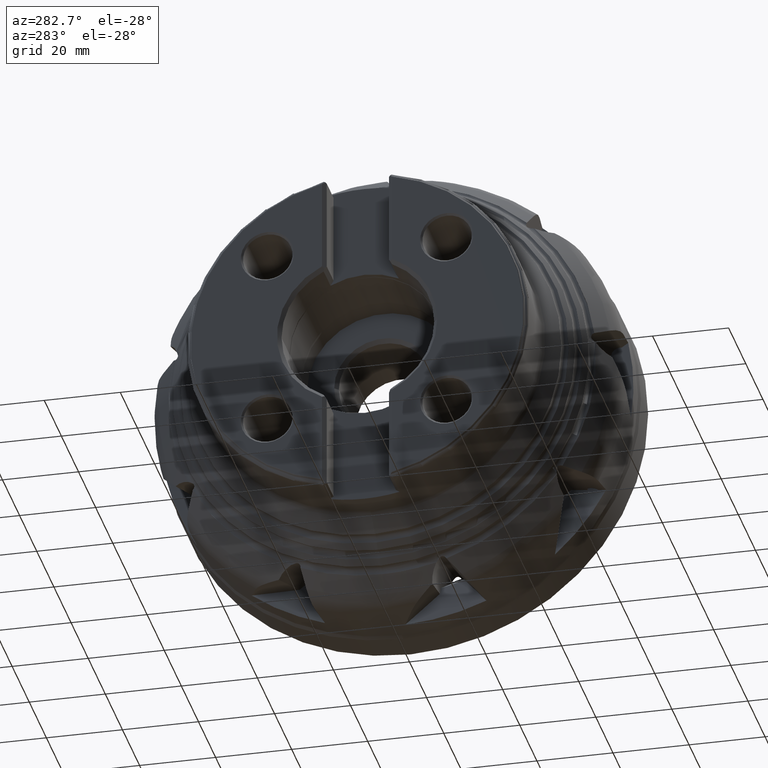
[diagram: clean part render]
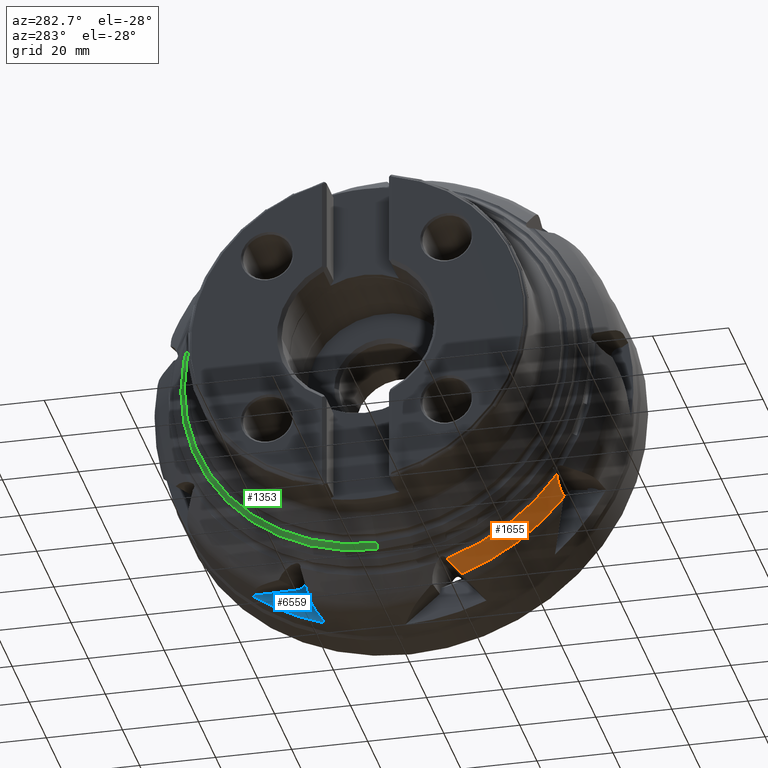
[diagram: same view with three faces highlighted in distinct colors, each labeled with its STEP entity id]
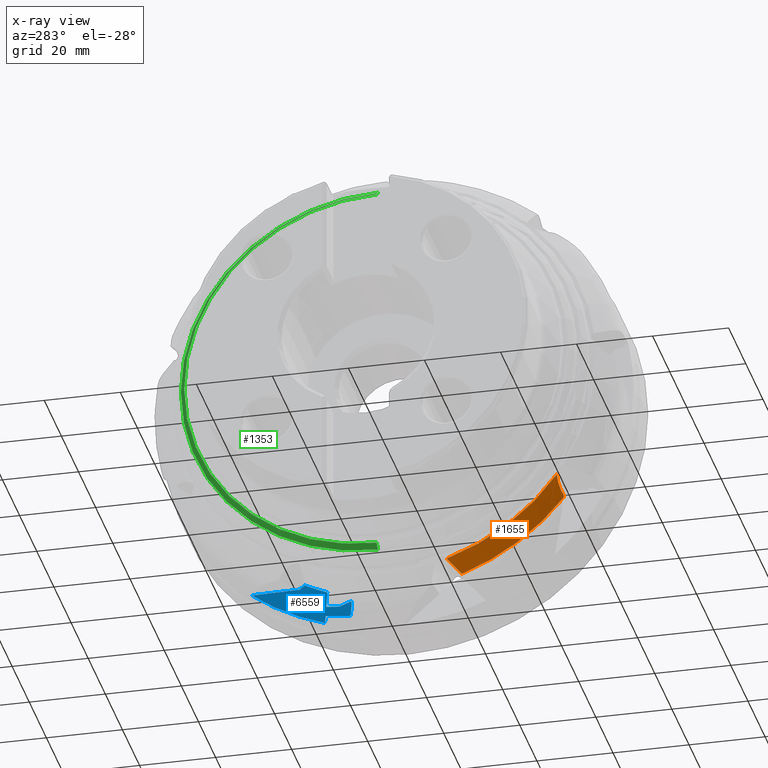
[diagram: x-ray of the same camera — body ghosted, the three highlighted faces saturated]
A machine part, auxiliary view with three faces highlighted in distinct colors.
The next image is the same camera in x-ray (body ghosted, the three faces saturated) — at least one of them is partly hidden behind the body in this view.
Their STEP definitions:

[orange] entity #1655 — the highlighted conical surface has half-angle 39.826 deg.
#1655 = ADVANCED_FACE ( 'NONE', ( #10095 ), #10097, .T. ) ;
#2130 = AXIS2_PLACEMENT_3D ( 'NONE', #15467, #15469, #15470 ) ;
#2137 = AXIS2_PLACEMENT_3D ( 'NONE', #15444, #15451, #15452 ) ;
#2582 = CIRCLE ( 'NONE', #2137, 59.75487436399001200 ) ;
#2586 = CIRCLE ( 'NONE', #2130, 56.25866457677549400 ) ;
#4457 = EDGE_CURVE ( 'NONE', #16005, #16023, #12687, .T. ) ;
#4475 = EDGE_CURVE ( 'NONE', #16012, #16013, #12697, .T. ) ;
#4482 = EDGE_CURVE ( 'NONE', #16013, #16002, #12702, .T. ) ;
#5420 = ORIENTED_EDGE ( 'NONE', *, *, #9175, .F. ) ;
#5421 = ORIENTED_EDGE ( 'NONE', *, *, #4475, .T. ) ;
#5422 = ORIENTED_EDGE ( 'NONE', *, *, #4482, .T. ) ;
#5423 = ORIENTED_EDGE ( 'NONE', *, *, #9180, .T. ) ;
#5424 = ORIENTED_EDGE ( 'NONE', *, *, #4457, .F. ) ;
#6952 = CARTESIAN_POINT ( 'NONE',  ( -31.59698679686136200, -45.86407484354990800, -32.58103710300501600 ) ) ;
#6955 = CARTESIAN_POINT ( 'NONE',  ( -27.40464907339420000, -19.93403308180935700, -56.33186784893219100 ) ) ;
#6962 = CARTESIAN_POINT ( 'NONE',  ( -27.40464907339420400, -46.70956325468263500, -37.26743499106200400 ) ) ;
#6963 = CARTESIAN_POINT ( 'NONE',  ( -27.62109095255488000, -46.83545344958759700, -36.81774189079518300 ) ) ;
#6973 = CARTESIAN_POINT ( 'NONE',  ( -31.59698679686139000, -16.91833157186468400, -53.65451888505366900 ) ) ;
#8283 = EDGE_LOOP ( 'NONE', ( #5420, #5421, #5422, #5423, #5424 ) ) ;
#9175 = EDGE_CURVE ( 'NONE', #16012, #16005, #2582, .T. ) ;
#9180 = EDGE_CURVE ( 'NONE', #16002, #16023, #2586, .T. ) ;
#9993 = AXIS2_PLACEMENT_3D ( 'NONE', #10768, #10736, #10941 ) ;
#10095 = FACE_OUTER_BOUND ( 'NONE', #8283, .T. ) ;
#10097 = CONICAL_SURFACE ( 'NONE', #9993, 59.75487436399001200, 0.6951034709373684600 ) ;
#10736 = DIRECTION ( 'NONE',  ( 1.000000000000000000, -0.0000000000000000000, -0.0000000000000000000 ) ) ;
#10768 = CARTESIAN_POINT ( 'NONE',  ( -27.40464907339420400, 0.0000000000000000000, 0.0000000000000000000 ) ) ;
#10941 = DIRECTION ( 'NONE',  ( 0.0000000000000000000, 0.0000000000000000000, -1.000000000000000000 ) ) ;
#12152 = CARTESIAN_POINT ( 'NONE',  ( -27.40464907339420000, -19.93403308180935700, -56.33186784893219100 ) ) ;
#12170 = CARTESIAN_POINT ( 'NONE',  ( -28.80806567821823100, -18.93226919372529300, -55.44485896743721300 ) ) ;
#12171 = CARTESIAN_POINT ( 'NONE',  ( -30.20591331876110500, -17.92726882929584100, -54.55277539010333500 ) ) ;
#12172 = CARTESIAN_POINT ( 'NONE',  ( -31.59698679686139000, -16.91833157186468400, -53.65451888505366900 ) ) ;
#12228 = CARTESIAN_POINT ( 'NONE',  ( -27.40464907339420400, -46.70956325468263500, -37.26743499106200400 ) ) ;
#12246 = CARTESIAN_POINT ( 'NONE',  ( -27.47718289146705200, -46.75161877367065000, -37.11773453255248300 ) ) ;
#12247 = CARTESIAN_POINT ( 'NONE',  ( -27.54933188338693700, -46.79358257686389800, -36.96783769938562600 ) ) ;
#12248 = CARTESIAN_POINT ( 'NONE',  ( -27.62109095255488000, -46.83545344958759700, -36.81774189079518300 ) ) ;
#12268 = CARTESIAN_POINT ( 'NONE',  ( -27.62109095255488000, -46.83545344958759700, -36.81774189079518300 ) ) ;
#12278 = CARTESIAN_POINT ( 'NONE',  ( -28.36215382730558700, -46.49925108574811400, -36.24542451290658100 ) ) ;
#12279 = CARTESIAN_POINT ( 'NONE',  ( -29.07099293930447500, -46.24610626590014600, -35.60914976426852300 ) ) ;
#12280 = CARTESIAN_POINT ( 'NONE',  ( -30.07781328662911900, -45.99637159372961300, -34.54822920776219800 ) ) ;
#12281 = CARTESIAN_POINT ( 'NONE',  ( -30.40559345123259000, -45.93493545995045900, -34.17431617934636300 ) ) ;
#12282 = CARTESIAN_POINT ( 'NONE',  ( -31.02718021484939100, -45.86184401837088100, -33.39919240328060100 ) ) ;
#12283 = CARTESIAN_POINT ( 'NONE',  ( -31.32147736149261500, -45.84978008720741400, -32.99789627330869000 ) ) ;
#12284 = CARTESIAN_POINT ( 'NONE',  ( -31.59698679686136200, -45.86407484354990800, -32.58103710300501600 ) ) ;
#12687 = B_SPLINE_CURVE_WITH_KNOTS ( 'NONE', 3,
 ( #12152, #12170, #12171, #12172 ),
 .UNSPECIFIED., .F., .F.,
 ( 4, 4 ),
 ( 2.763291038025456800E-007, 0.005817350220595130500 ),
 .UNSPECIFIED. ) ;
#12697 = B_SPLINE_CURVE_WITH_KNOTS ( 'NONE', 3,
 ( #12228, #12246, #12247, #12248 ),
 .UNSPECIFIED., .F., .F.,
 ( 4, 4 ),
 ( 4.728720295787074400E-007, 0.0005149635873332307800 ),
 .UNSPECIFIED. ) ;
#12702 = B_SPLINE_CURVE_WITH_KNOTS ( 'NONE', 3,
 ( #12268, #12278, #12279, #12280, #12281, #12282, #12283, #12284 ),
 .UNSPECIFIED., .F., .F.,
 ( 4, 2, 2, 4 ),
 ( 0.0002867613175306255100, 0.003242237368667228500, 0.004719975394235523100, 0.006197713419803817200 ),
 .UNSPECIFIED. ) ;
#15444 = CARTESIAN_POINT ( 'NONE',  ( -27.40464907339420400, 0.0000000000000000000, 0.0000000000000000000 ) ) ;
#15451 = DIRECTION ( 'NONE',  ( 1.000000000000000000, -0.0000000000000000000, -0.0000000000000000000 ) ) ;
#15452 = DIRECTION ( 'NONE',  ( 0.0000000000000000000, 0.0000000000000000000, -1.000000000000000000 ) ) ;
#15467 = CARTESIAN_POINT ( 'NONE',  ( -31.59698679686139000, 0.0000000000000000000, 0.0000000000000000000 ) ) ;
#15469 = DIRECTION ( 'NONE',  ( 1.000000000000000000, -0.0000000000000000000, -0.0000000000000000000 ) ) ;
#15470 = DIRECTION ( 'NONE',  ( 0.0000000000000000000, 0.0000000000000000000, -1.000000000000000000 ) ) ;
#16002 = VERTEX_POINT ( 'NONE', #6952 ) ;
#16005 = VERTEX_POINT ( 'NONE', #6955 ) ;
#16012 = VERTEX_POINT ( 'NONE', #6962 ) ;
#16013 = VERTEX_POINT ( 'NONE', #6963 ) ;
#16023 = VERTEX_POINT ( 'NONE', #6973 ) ;

[blue] entity #6559 — the highlighted conical surface has half-angle 80.208 deg.
#2072 = AXIS2_PLACEMENT_3D ( 'NONE', #15157, #15156, #15155 ) ;
#2280 = B_SPLINE_CURVE_WITH_KNOTS ( 'NONE', 3,
 ( #3757, #3761, #3762, #3763 ),
 .UNSPECIFIED., .F., .F.,
 ( 4, 4 ),
 ( 0.0005150278408702748200, 0.006827772288196296900 ),
 .UNSPECIFIED. ) ;
#2283 = B_SPLINE_CURVE_WITH_KNOTS ( 'NONE', 3,
 ( #3769, #3784, #3785, #3786 ),
 .UNSPECIFIED., .F., .F.,
 ( 4, 4 ),
 ( 4.766390905690214300E-007, 0.003196321135835946900 ),
 .UNSPECIFIED. ) ;
#2284 = B_SPLINE_CURVE_WITH_KNOTS ( 'NONE', 3,
 ( #3791, #3796, #3797, #3798 ),
 .UNSPECIFIED., .F., .F.,
 ( 4, 4 ),
 ( 1.722894020290087400E-006, 0.01241813123829224100 ),
 .UNSPECIFIED. ) ;
#2285 = B_SPLINE_CURVE_WITH_KNOTS ( 'NONE', 3,
 ( #3795, #3799, #3800, #3801 ),
 .UNSPECIFIED., .F., .F.,
 ( 4, 4 ),
 ( 0.003940301509007342600, 0.005728908248606380700 ),
 .UNSPECIFIED. ) ;
#2293 = B_SPLINE_CURVE_WITH_KNOTS ( 'NONE', 3,
 ( #3850, #3855, #3856, #3857 ),
 .UNSPECIFIED., .F., .F.,
 ( 4, 4 ),
 ( 1.225363237503614800E-006, 0.002146814150722562800 ),
 .UNSPECIFIED. ) ;
#2296 = B_SPLINE_CURVE_WITH_KNOTS ( 'NONE', 3,
 ( #3868, #3872, #3873, #3874 ),
 .UNSPECIFIED., .F., .F.,
 ( 4, 4 ),
 ( 0.005195360701098189500, 0.009873090010453481100 ),
 .UNSPECIFIED. ) ;
#2297 = B_SPLINE_CURVE_WITH_KNOTS ( 'NONE', 3,
 ( #3880, #3884, #3885, #3886 ),
 .UNSPECIFIED., .F., .F.,
 ( 4, 4 ),
 ( 0.005475256844018281000, 0.005888805522349041200 ),
 .UNSPECIFIED. ) ;
#2298 = B_SPLINE_CURVE_WITH_KNOTS ( 'NONE', 3,
 ( #3891, #3906, #3907, #3908 ),
 .UNSPECIFIED., .F., .F.,
 ( 4, 4 ),
 ( 0.002281943434446702800, 0.004949250471279244500 ),
 .UNSPECIFIED. ) ;
#2301 = B_SPLINE_CURVE_WITH_KNOTS ( 'NONE', 3,
 ( #3931, #3935, #3936, #3937, #3938, #3939, #3940, #3941, #3942, #3943 ),
 .UNSPECIFIED., .F., .F.,
 ( 4, 2, 2, 2, 4 ),
 ( 0.001221612747881693600, 0.001654940430520880400, 0.001871604271840473100, 0.001979936192500260400, 0.002088268113160047200 ),
 .UNSPECIFIED. ) ;
#2302 = B_SPLINE_CURVE_WITH_KNOTS ( 'NONE', 3,
 ( #3934, #3947, #3948, #3949, #3950, #3951 ),
 .UNSPECIFIED., .F., .F.,
 ( 4, 2, 4 ),
 ( 0.0002409530024734452400, 0.0004689869156112696500, 0.0006970208287490940000 ),
 .UNSPECIFIED. ) ;
#2307 = B_SPLINE_CURVE_WITH_KNOTS ( 'NONE', 3,
 ( #3996, #4003, #4004, #4005 ),
 .UNSPECIFIED., .F., .F.,
 ( 4, 4 ),
 ( 6.046138173515181300E-005, 0.0004541308774471694700 ),
 .UNSPECIFIED. ) ;
#2309 = B_SPLINE_CURVE_WITH_KNOTS ( 'NONE', 3,
 ( #4018, #4021, #4022, #4023 ),
 .UNSPECIFIED., .F., .F.,
 ( 4, 4 ),
 ( 0.0004236800379035548200, 0.0005606957980017889400 ),
 .UNSPECIFIED. ) ;
#2451 = CONICAL_SURFACE ( 'NONE', #2072, 52.81032059236056900, 1.399899201079075600 ) ;
#2453 = FACE_OUTER_BOUND ( 'NONE', #8495, .T. ) ;
#3757 = CARTESIAN_POINT ( 'NONE',  ( -13.44599020506962700, 12.71637889422750900, -57.45250706453072100 ) ) ;
#3761 = CARTESIAN_POINT ( 'NONE',  ( -13.49795795117141100, 14.81427234114964600, -57.29657467631147900 ) ) ;
#3762 = CARTESIAN_POINT ( 'NONE',  ( -13.56765820918304600, 16.91097570683276200, -57.13274455544784300 ) ) ;
#3763 = CARTESIAN_POINT ( 'NONE',  ( -13.65408907161152500, 19.00655623224738000, -56.96146293299575800 ) ) ;
#3769 = CARTESIAN_POINT ( 'NONE',  ( -13.01932541081509800, 15.49612115113056800, -54.19896934975194100 ) ) ;
#3784 = CARTESIAN_POINT ( 'NONE',  ( -12.89963109796873500, 14.53655638119237500, -53.75197308796791200 ) ) ;
#3785 = CARTESIAN_POINT ( 'NONE',  ( -12.78368646953295800, 13.57388139645173400, -53.31079373347999700 ) ) ;
#3786 = CARTESIAN_POINT ( 'NONE',  ( -12.67207502324445800, 12.60761220863941100, -52.87633646971298900 ) ) ;
#3791 = CARTESIAN_POINT ( 'NONE',  ( -14.00377308555395000, 38.34146057971122400, -48.81841891760169700 ) ) ;
#3795 = CARTESIAN_POINT ( 'NONE',  ( -12.69854936491424100, 26.02828007012415100, -47.89664438946936500 ) ) ;
#3796 = CARTESIAN_POINT ( 'NONE',  ( -13.52333077790941300, 34.24280288187302500, -48.49762996399985600 ) ) ;
#3797 = CARTESIAN_POINT ( 'NONE',  ( -13.08154416022925700, 30.13925797690395600, -48.18836994285734900 ) ) ;
#3798 = CARTESIAN_POINT ( 'NONE',  ( -12.69854936491424100, 26.02828007012415100, -47.89664438946936500 ) ) ;
#3799 = CARTESIAN_POINT ( 'NONE',  ( -12.59874866960023200, 25.63326418693367300, -47.45315013495556400 ) ) ;
#3800 = CARTESIAN_POINT ( 'NONE',  ( -12.50024036587934100, 25.20383605055290100, -47.03637765717036200 ) ) ;
#3801 = CARTESIAN_POINT ( 'NONE',  ( -12.40486984807181300, 24.74476656208230100, -46.65432979752208100 ) ) ;
#3850 = CARTESIAN_POINT ( 'NONE',  ( -14.00377308555386000, 19.05570111544891500, -59.07779515180539700 ) ) ;
#3855 = CARTESIAN_POINT ( 'NONE',  ( -13.88704105654397500, 19.03929549865536300, -58.37237965583193500 ) ) ;
#3856 = CARTESIAN_POINT ( 'NONE',  ( -13.77047390330125300, 19.02291305363975100, -57.66693655648214200 ) ) ;
#3857 = CARTESIAN_POINT ( 'NONE',  ( -13.65408907161152500, 19.00655623224738000, -56.96146293299575800 ) ) ;
#3868 = CARTESIAN_POINT ( 'NONE',  ( -13.15915652798819100, 18.93699799944517200, -53.95416498627795200 ) ) ;
#3872 = CARTESIAN_POINT ( 'NONE',  ( -12.90663704633954200, 18.90150870071565600, -52.41591485177237100 ) ) ;
#3873 = CARTESIAN_POINT ( 'NONE',  ( -12.65511686872703800, 18.86615984500949800, -50.87749741454034300 ) ) ;
#3874 = CARTESIAN_POINT ( 'NONE',  ( -12.40486984807181700, 18.83098991984483200, -49.33886682633281100 ) ) ;
#3880 = CARTESIAN_POINT ( 'NONE',  ( -13.31765883756456900, 12.39539482496257400, -56.76171572487335500 ) ) ;
#3884 = CARTESIAN_POINT ( 'NONE',  ( -13.34068730282012400, 12.39863126469319400, -56.89758962427080000 ) ) ;
#3885 = CARTESIAN_POINT ( 'NONE',  ( -13.36371867034765000, 12.40186811230985100, -57.03346302209489200 ) ) ;
#3886 = CARTESIAN_POINT ( 'NONE',  ( -13.38675288060223200, 12.40510535944573800, -57.16933592844694800 ) ) ;
#3891 = CARTESIAN_POINT ( 'NONE',  ( -12.78474821371682100, 12.32049912106692500, -53.61407414729055900 ) ) ;
#3906 = CARTESIAN_POINT ( 'NONE',  ( -12.93296318313621300, 12.34132937658451600, -54.49048809860429500 ) ) ;
#3907 = CARTESIAN_POINT ( 'NONE',  ( -13.08132024829718000, 12.36217960235623900, -55.36687755381321800 ) ) ;
#3908 = CARTESIAN_POINT ( 'NONE',  ( -13.22980102818644400, 12.38304721509914000, -56.24324562232334300 ) ) ;
#3931 = CARTESIAN_POINT ( 'NONE',  ( -12.78474821371682100, 12.32049912106692500, -53.61407414729055900 ) ) ;
#3934 = CARTESIAN_POINT ( 'NONE',  ( -13.44546660870419800, 12.69873282741349700, -57.45330280812243000 ) ) ;
#3935 = CARTESIAN_POINT ( 'NONE',  ( -12.76107847916856200, 12.31717255681633300, -53.47411199864090000 ) ) ;
#3936 = CARTESIAN_POINT ( 'NONE',  ( -12.73783261223199000, 12.32388597175549300, -53.33435348911161400 ) ) ;
#3937 = CARTESIAN_POINT ( 'NONE',  ( -12.70440275560400200, 12.36479960916648000, -53.12599535360117600 ) ) ;
#3938 = CARTESIAN_POINT ( 'NONE',  ( -12.69364800868638800, 12.38288935544014900, -53.05780296747912000 ) ) ;
#3939 = CARTESIAN_POINT ( 'NONE',  ( -12.67928112974401200, 12.42949432041387700, -52.96138456228033700 ) ) ;
#3940 = CARTESIAN_POINT ( 'NONE',  ( -12.67489325006294400, 12.44769949566390600, -52.93099458017837800 ) ) ;
#3941 = CARTESIAN_POINT ( 'NONE',  ( -12.66838565422974800, 12.49921052016004600, -52.88010847179560200 ) ) ;
#3942 = CARTESIAN_POINT ( 'NONE',  ( -12.66680699884423200, 12.53454986731527900, -52.86234382195171100 ) ) ;
#3943 = CARTESIAN_POINT ( 'NONE',  ( -12.66885055933064800, 12.57034781277483000, -52.86600321224825900 ) ) ;
#3947 = CARTESIAN_POINT ( 'NONE',  ( -13.44283222693620400, 12.62253879395150100, -57.45451068059262000 ) ) ;
#3948 = CARTESIAN_POINT ( 'NONE',  ( -13.43498481693849200, 12.54595179648219400, -57.42470683100496100 ) ) ;
#3949 = CARTESIAN_POINT ( 'NONE',  ( -13.41328480760878800, 12.43816374823472000, -57.31949178005050500 ) ) ;
#3950 = CARTESIAN_POINT ( 'NONE',  ( -13.39956159629926600, 12.40690550704126900, -57.24489126154314500 ) ) ;
#3951 = CARTESIAN_POINT ( 'NONE',  ( -13.38675288060223200, 12.40510535944573800, -57.16933592844694800 ) ) ;
#3996 = CARTESIAN_POINT ( 'NONE',  ( -13.29630988252267300, 12.42121247122413900, -56.62943298594540700 ) ) ;
#4003 = CARTESIAN_POINT ( 'NONE',  ( -13.27391785383847300, 12.39869391383678200, -56.50153946678006600 ) ) ;
#4004 = CARTESIAN_POINT ( 'NONE',  ( -13.25175057225903600, 12.38613202234443700, -56.37279693231727900 ) ) ;
#4005 = CARTESIAN_POINT ( 'NONE',  ( -13.22980102818644400, 12.38304721509914000, -56.24324562232334300 ) ) ;
#4018 = CARTESIAN_POINT ( 'NONE',  ( -13.31765883756456900, 12.39539482496257400, -56.76171572487335500 ) ) ;
#4021 = CARTESIAN_POINT ( 'NONE',  ( -13.31001866000783100, 12.39432106803315700, -56.71663670179414400 ) ) ;
#4022 = CARTESIAN_POINT ( 'NONE',  ( -13.30266536143259900, 12.40335557473174800, -56.67105138220200900 ) ) ;
#4023 = CARTESIAN_POINT ( 'NONE',  ( -13.29630988252267300, 12.42121247122413900, -56.62943298594540700 ) ) ;
#4362 = EDGE_CURVE ( 'NONE', #16464, #16458, #10334, .T. ) ;
#4968 = EDGE_CURVE ( 'NONE', #16112, #16497, #12809, .T. ) ;
#4970 = EDGE_CURVE ( 'NONE', #16121, #16120, #12810, .T. ) ;
#4981 = EDGE_CURVE ( 'NONE', #16509, #16508, #12812, .T. ) ;
#4982 = EDGE_CURVE ( 'NONE', #16502, #16501, #11299, .T. ) ;
#6458 = ORIENTED_EDGE ( 'NONE', *, *, #9428, .F. ) ;
#6559 = ADVANCED_FACE ( 'NONE', ( #2453 ), #2451, .F. ) ;
#6912 = CARTESIAN_POINT ( 'NONE',  ( -13.29630988252267300, 12.42121247122413900, -56.62943298594540700 ) ) ;
#7062 = CARTESIAN_POINT ( 'NONE',  ( -13.44599020506962700, 12.71637889422750900, -57.45250706453072100 ) ) ;
#7070 = CARTESIAN_POINT ( 'NONE',  ( -12.67207502324445800, 12.60761220863941100, -52.87633646971298900 ) ) ;
#7071 = CARTESIAN_POINT ( 'NONE',  ( -12.66885055933064800, 12.57034781277483000, -52.86600321224825900 ) ) ;
#7270 = ORIENTED_EDGE ( 'NONE', *, *, #9427, .F. ) ;
#7272 = ORIENTED_EDGE ( 'NONE', *, *, #4982, .F. ) ;
#7275 = ORIENTED_EDGE ( 'NONE', *, *, #9438, .T. ) ;
#7277 = ORIENTED_EDGE ( 'NONE', *, *, #9419, .F. ) ;
#7279 = ORIENTED_EDGE ( 'NONE', *, *, #4968, .T. ) ;
#7281 = ORIENTED_EDGE ( 'NONE', *, *, #9468, .T. ) ;
#7283 = ORIENTED_EDGE ( 'NONE', *, *, #9448, .F. ) ;
#7286 = ORIENTED_EDGE ( 'NONE', *, *, #9484, .T. ) ;
#7288 = ORIENTED_EDGE ( 'NONE', *, *, #9480, .T. ) ;
#7290 = ORIENTED_EDGE ( 'NONE', *, *, #9455, .F. ) ;
#7292 = ORIENTED_EDGE ( 'NONE', *, *, #9466, .T. ) ;
#7294 = ORIENTED_EDGE ( 'NONE', *, *, #4970, .T. ) ;
#7297 = ORIENTED_EDGE ( 'NONE', *, *, #9424, .F. ) ;
#7299 = ORIENTED_EDGE ( 'NONE', *, *, #4981, .F. ) ;
#7301 = ORIENTED_EDGE ( 'NONE', *, *, #9444, .T. ) ;
#7303 = ORIENTED_EDGE ( 'NONE', *, *, #4362, .T. ) ;
#7487 = CARTESIAN_POINT ( 'NONE',  ( -13.38675288060223200, 12.40510535944573800, -57.16933592844694800 ) ) ;
#7489 = CARTESIAN_POINT ( 'NONE',  ( -13.31765883756456900, 12.39539482496257400, -56.76171572487335500 ) ) ;
#7491 = CARTESIAN_POINT ( 'NONE',  ( -12.78474821371682100, 12.32049912106692500, -53.61407414729055900 ) ) ;
#7493 = CARTESIAN_POINT ( 'NONE',  ( -13.22980102818644400, 12.38304721509914000, -56.24324562232334300 ) ) ;
#7518 = CARTESIAN_POINT ( 'NONE',  ( -13.65408907161152500, 19.00655623224738000, -56.96146293299575800 ) ) ;
#7522 = CARTESIAN_POINT ( 'NONE',  ( -12.69854936491424100, 26.02828007012415100, -47.89664438946936500 ) ) ;
#7524 = CARTESIAN_POINT ( 'NONE',  ( -12.40486984807181300, 24.74476656208230100, -46.65432979752208100 ) ) ;
#7535 = CARTESIAN_POINT ( 'NONE',  ( -12.40486984807181700, 18.83098991984483200, -49.33886682633281100 ) ) ;
#7595 = CARTESIAN_POINT ( 'NONE',  ( -13.44546660870419800, 12.69873282741349700, -57.45330280812243000 ) ) ;
#7603 = CARTESIAN_POINT ( 'NONE',  ( -14.00377308555395000, 38.34146057971122400, -48.81841891760169700 ) ) ;
#7604 = CARTESIAN_POINT ( 'NONE',  ( -14.00377308555386000, 19.05570111544891500, -59.07779515180539700 ) ) ;
#7615 = CARTESIAN_POINT ( 'NONE',  ( -13.01932541081509800, 15.49612115113056800, -54.19896934975194100 ) ) ;
#7617 = CARTESIAN_POINT ( 'NONE',  ( -13.15915652798819100, 18.93699799944517200, -53.95416498627795200 ) ) ;
#8495 = EDGE_LOOP ( 'NONE', ( #6458, #7270, #7272, #7275, #7277, #7279, #7281, #7283, #7286, #7288, #7290, #7292, #7294, #7297, #7299, #7301, #7303 ) ) ;
#9419 = EDGE_CURVE ( 'NONE', #16112, #16455, #2280, .T. ) ;
#9424 = EDGE_CURVE ( 'NONE', #16508, #16120, #2283, .T. ) ;
#9427 = EDGE_CURVE ( 'NONE', #16501, #16457, #2284, .T. ) ;
#9428 = EDGE_CURVE ( 'NONE', #16457, #16458, #2285, .T. ) ;
#9438 = EDGE_CURVE ( 'NONE', #16502, #16455, #2293, .T. ) ;
#9444 = EDGE_CURVE ( 'NONE', #16509, #16464, #2296, .T. ) ;
#9448 = EDGE_CURVE ( 'NONE', #16439, #16438, #2297, .T. ) ;
#9455 = EDGE_CURVE ( 'NONE', #16440, #16441, #2298, .T. ) ;
#9466 = EDGE_CURVE ( 'NONE', #16440, #16121, #2301, .T. ) ;
#9468 = EDGE_CURVE ( 'NONE', #16497, #16438, #2302, .T. ) ;
#9480 = EDGE_CURVE ( 'NONE', #15958, #16441, #2307, .T. ) ;
#9484 = EDGE_CURVE ( 'NONE', #16439, #15958, #2309, .T. ) ;
#10038 = AXIS2_PLACEMENT_3D ( 'NONE', #11868, #11874, #11875 ) ;
#10334 = CIRCLE ( 'NONE', #10038, 52.81032059236056900 ) ;
#11299 = CIRCLE ( 'NONE', #12998, 62.07500000000001000 ) ;
#11868 = CARTESIAN_POINT ( 'NONE',  ( -12.40486984807181700, 0.0000000000000000000, 0.0000000000000000000 ) ) ;
#11874 = DIRECTION ( 'NONE',  ( 1.000000000000000000, -0.0000000000000000000, -0.0000000000000000000 ) ) ;
#11875 = DIRECTION ( 'NONE',  ( 0.0000000000000000000, 0.0000000000000000000, -1.000000000000000000 ) ) ;
#12809 = B_SPLINE_CURVE_WITH_KNOTS ( 'NONE', 3,
 ( #14369, #14372, #14373, #14374 ),
 .UNSPECIFIED., .F., .F.,
 ( 4, 4 ),
 ( 0.0002233906686347106800, 0.0002409530024734452400 ),
 .UNSPECIFIED. ) ;
#12810 = B_SPLINE_CURVE_WITH_KNOTS ( 'NONE', 3,
 ( #14375, #14379, #14380, #14381 ),
 .UNSPECIFIED., .F., .F.,
 ( 4, 4 ),
 ( 0.002088268113160047200, 0.002127186954166044000 ),
 .UNSPECIFIED. ) ;
#12812 = B_SPLINE_CURVE_WITH_KNOTS ( 'NONE', 3,
 ( #14406, #14410, #14411, #14412 ),
 .UNSPECIFIED., .F., .F.,
 ( 4, 4 ),
 ( 0.0002413293975164290700, 0.003694106000871204100 ),
 .UNSPECIFIED. ) ;
#12998 = AXIS2_PLACEMENT_3D ( 'NONE', #14409, #14414, #14415 ) ;
#14369 = CARTESIAN_POINT ( 'NONE',  ( -13.44599020506962700, 12.71637889422750900, -57.45250706453072100 ) ) ;
#14372 = CARTESIAN_POINT ( 'NONE',  ( -13.44584415487679200, 12.71048297290216700, -57.45294529703216600 ) ) ;
#14373 = CARTESIAN_POINT ( 'NONE',  ( -13.44566949910506500, 12.70460101181543800, -57.45320978222384400 ) ) ;
#14374 = CARTESIAN_POINT ( 'NONE',  ( -13.44546660870419800, 12.69873282741349700, -57.45330280812243000 ) ) ;
#14375 = CARTESIAN_POINT ( 'NONE',  ( -12.66885055933064800, 12.57034781277483000, -52.86600321224825900 ) ) ;
#14379 = CARTESIAN_POINT ( 'NONE',  ( -12.66958471972559700, 12.58320842245659900, -52.86731786842958800 ) ) ;
#14380 = CARTESIAN_POINT ( 'NONE',  ( -12.67071940032372100, 12.59587598708330900, -52.87105958957516100 ) ) ;
#14381 = CARTESIAN_POINT ( 'NONE',  ( -12.67207502324445800, 12.60761220863941100, -52.87633646971298900 ) ) ;
#14406 = CARTESIAN_POINT ( 'NONE',  ( -13.15915652798819100, 18.93699799944517200, -53.95416498627795200 ) ) ;
#14409 = CARTESIAN_POINT ( 'NONE',  ( -14.00377308555385300, 0.0000000000000000000, 0.0000000000000000000 ) ) ;
#14410 = CARTESIAN_POINT ( 'NONE',  ( -13.09902261063923800, 17.78759367144389000, -53.98830782634277600 ) ) ;
#14411 = CARTESIAN_POINT ( 'NONE',  ( -13.05180064650561700, 16.63889118282438400, -54.06795252556395300 ) ) ;
#14412 = CARTESIAN_POINT ( 'NONE',  ( -13.01932541081509800, 15.49612115113056800, -54.19896934975194100 ) ) ;
#14414 = DIRECTION ( 'NONE',  ( 1.000000000000000000, -0.0000000000000000000, -0.0000000000000000000 ) ) ;
#14415 = DIRECTION ( 'NONE',  ( 0.0000000000000000000, 0.0000000000000000000, -1.000000000000000000 ) ) ;
#15155 = DIRECTION ( 'NONE',  ( 0.0000000000000000000, 0.0000000000000000000, 1.000000000000000000 ) ) ;
#15156 = DIRECTION ( 'NONE',  ( -1.000000000000000000, 0.0000000000000000000, 0.0000000000000000000 ) ) ;
#15157 = CARTESIAN_POINT ( 'NONE',  ( -12.40486984807181700, 0.0000000000000000000, 0.0000000000000000000 ) ) ;
#15958 = VERTEX_POINT ( 'NONE', #6912 ) ;
#16112 = VERTEX_POINT ( 'NONE', #7062 ) ;
#16120 = VERTEX_POINT ( 'NONE', #7070 ) ;
#16121 = VERTEX_POINT ( 'NONE', #7071 ) ;
#16438 = VERTEX_POINT ( 'NONE', #7487 ) ;
#16439 = VERTEX_POINT ( 'NONE', #7489 ) ;
#16440 = VERTEX_POINT ( 'NONE', #7491 ) ;
#16441 = VERTEX_POINT ( 'NONE', #7493 ) ;
#16455 = VERTEX_POINT ( 'NONE', #7518 ) ;
#16457 = VERTEX_POINT ( 'NONE', #7522 ) ;
#16458 = VERTEX_POINT ( 'NONE', #7524 ) ;
#16464 = VERTEX_POINT ( 'NONE', #7535 ) ;
#16497 = VERTEX_POINT ( 'NONE', #7595 ) ;
#16501 = VERTEX_POINT ( 'NONE', #7603 ) ;
#16502 = VERTEX_POINT ( 'NONE', #7604 ) ;
#16508 = VERTEX_POINT ( 'NONE', #7615 ) ;
#16509 = VERTEX_POINT ( 'NONE', #7617 ) ;

[green] entity #1353 — the highlighted conical surface has half-angle 39.826 deg.
#1353 = ADVANCED_FACE ( 'NONE', ( #8673 ), #8675, .T. ) ;
#1683 = DIRECTION ( 'NONE',  ( 1.000000000000000000, -0.0000000000000000000, -0.0000000000000000000 ) ) ;
#1684 = CARTESIAN_POINT ( 'NONE',  ( -36.92002488396894200, 0.0000000000000000000, 0.0000000000000000000 ) ) ;
#1691 = DIRECTION ( 'NONE',  ( 0.0000000000000000000, 0.0000000000000000000, -1.000000000000000000 ) ) ;
#4606 = EDGE_CURVE ( 'NONE', #16210, #16209, #10724, .T. ) ;
#4608 = EDGE_CURVE ( 'NONE', #16209, #16212, #10725, .T. ) ;
#4609 = EDGE_CURVE ( 'NONE', #16211, #16212, #10732, .T. ) ;
#4610 = EDGE_CURVE ( 'NONE', #16210, #16211, #10731, .T. ) ;
#6248 = ORIENTED_EDGE ( 'NONE', *, *, #4610, .F. ) ;
#6249 = ORIENTED_EDGE ( 'NONE', *, *, #4609, .F. ) ;
#6250 = ORIENTED_EDGE ( 'NONE', *, *, #4608, .T. ) ;
#6251 = ORIENTED_EDGE ( 'NONE', *, *, #4606, .T. ) ;
#7159 = CARTESIAN_POINT ( 'NONE',  ( -38.39698679686138400, 6.270638201600601900E-015, 50.58778877400341400 ) ) ;
#7160 = CARTESIAN_POINT ( 'NONE',  ( -38.39698679686138400, 0.0000000000000000000, -50.58778877400341400 ) ) ;
#7161 = CARTESIAN_POINT ( 'NONE',  ( -36.92002488396894200, 0.0000000000000000000, -51.81950459362659000 ) ) ;
#7162 = CARTESIAN_POINT ( 'NONE',  ( -36.92002488396894200, 6.348792656406886000E-015, 51.81950459362659000 ) ) ;
#8239 = EDGE_LOOP ( 'NONE', ( #6251, #6250, #6249, #6248 ) ) ;
#8673 = FACE_OUTER_BOUND ( 'NONE', #8239, .T. ) ;
#8675 = CONICAL_SURFACE ( 'NONE', #9616, 51.81950459362659000, 0.6951034709373609100 ) ;
#9616 = AXIS2_PLACEMENT_3D ( 'NONE', #1684, #1683, #1691 ) ;
#10708 = VECTOR ( 'NONE', #13153, 1000.000000000000000 ) ;
#10717 = VECTOR ( 'NONE', #13157, 1000.000000000000000 ) ;
#10724 = CIRCLE ( 'NONE', #12915, 50.58778877400341400 ) ;
#10725 = LINE ( 'NONE', #13140, #10708 ) ;
#10731 = LINE ( 'NONE', #13143, #10717 ) ;
#10732 = CIRCLE ( 'NONE', #12921, 51.81950459362659000 ) ;
#12915 = AXIS2_PLACEMENT_3D ( 'NONE', #13146, #13147, #13148 ) ;
#12921 = AXIS2_PLACEMENT_3D ( 'NONE', #13152, #13154, #13155 ) ;
#13140 = CARTESIAN_POINT ( 'NONE',  ( -36.92002488396894200, 6.346059043398636600E-015, 51.81950459362659000 ) ) ;
#13143 = CARTESIAN_POINT ( 'NONE',  ( -36.92002488396894200, 0.0000000000000000000, -51.81950459362659000 ) ) ;
#13146 = CARTESIAN_POINT ( 'NONE',  ( -38.39698679686138400, 0.0000000000000000000, 0.0000000000000000000 ) ) ;
#13147 = DIRECTION ( 'NONE',  ( 1.000000000000000000, -0.0000000000000000000, -0.0000000000000000000 ) ) ;
#13148 = DIRECTION ( 'NONE',  ( 0.0000000000000000000, 0.0000000000000000000, -1.000000000000000000 ) ) ;
#13152 = CARTESIAN_POINT ( 'NONE',  ( -36.92002488396894200, 0.0000000000000000000, 0.0000000000000000000 ) ) ;
#13153 = DIRECTION ( 'NONE',  ( 0.7679874363990045700, 7.843432987394203300E-017, 0.6404649073394146400 ) ) ;
#13154 = DIRECTION ( 'NONE',  ( 1.000000000000000000, -0.0000000000000000000, -0.0000000000000000000 ) ) ;
#13155 = DIRECTION ( 'NONE',  ( 0.0000000000000000000, 0.0000000000000000000, -1.000000000000000000 ) ) ;
#13157 = DIRECTION ( 'NONE',  ( 0.7679874363990045700, 0.0000000000000000000, -0.6404649073394146400 ) ) ;
#16209 = VERTEX_POINT ( 'NONE', #7159 ) ;
#16210 = VERTEX_POINT ( 'NONE', #7160 ) ;
#16211 = VERTEX_POINT ( 'NONE', #7161 ) ;
#16212 = VERTEX_POINT ( 'NONE', #7162 ) ;